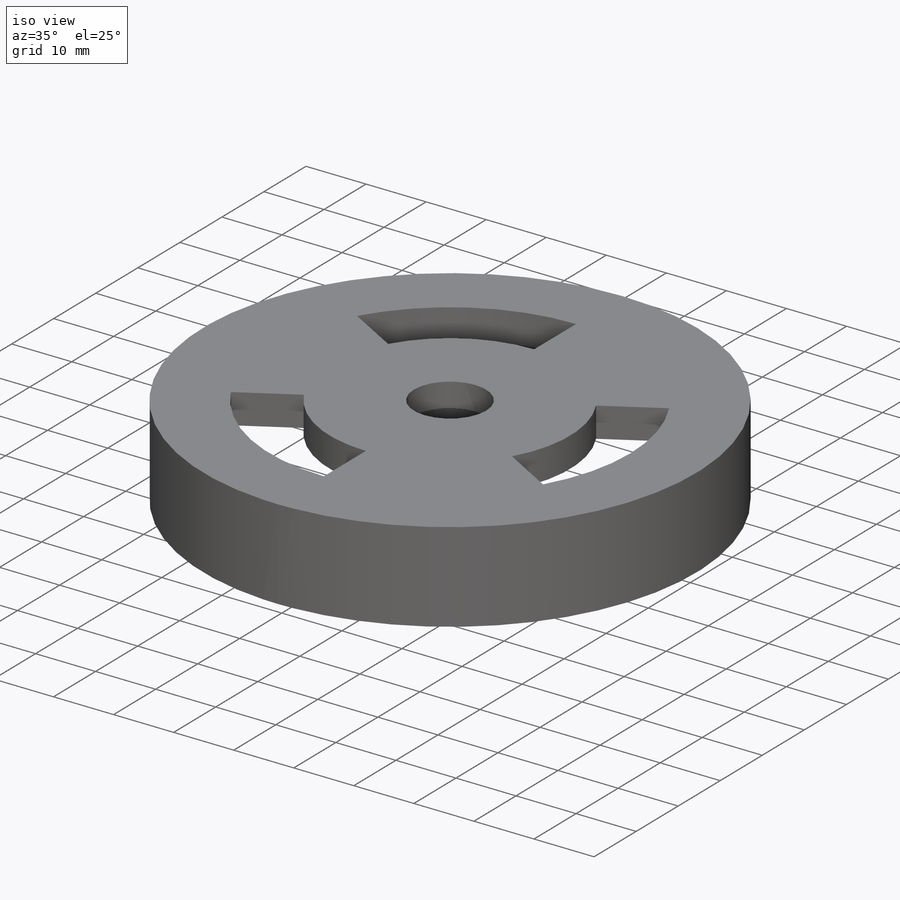
[diagram: iso view]
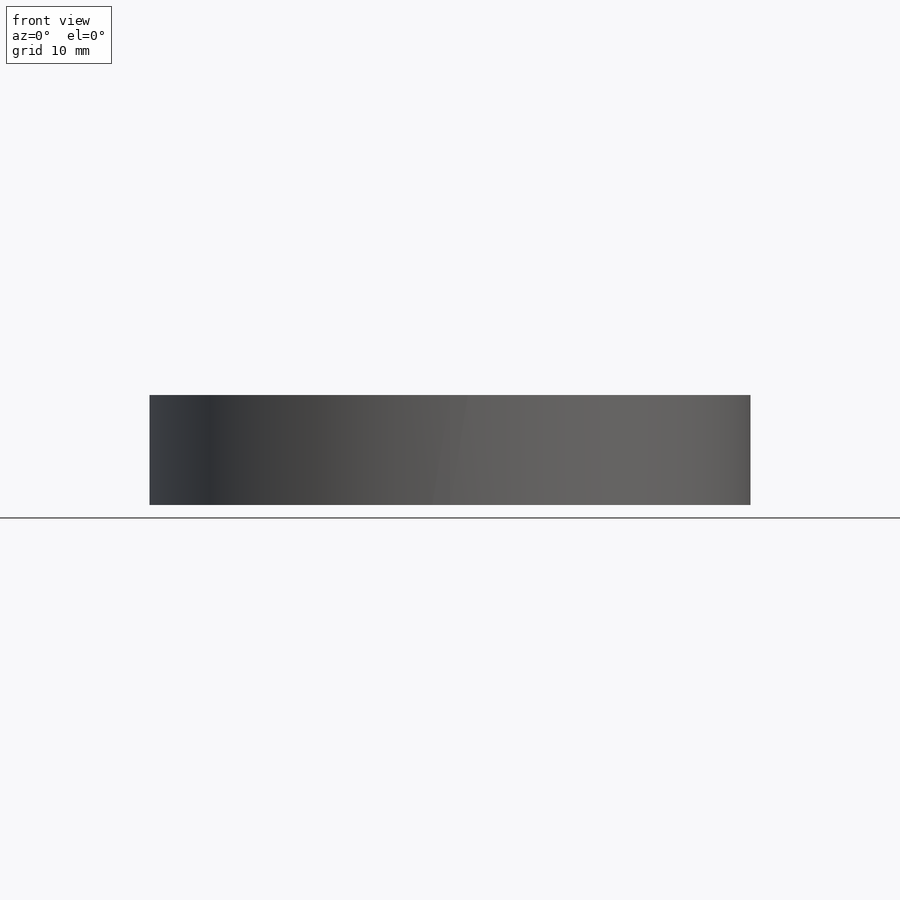
[diagram: front view]
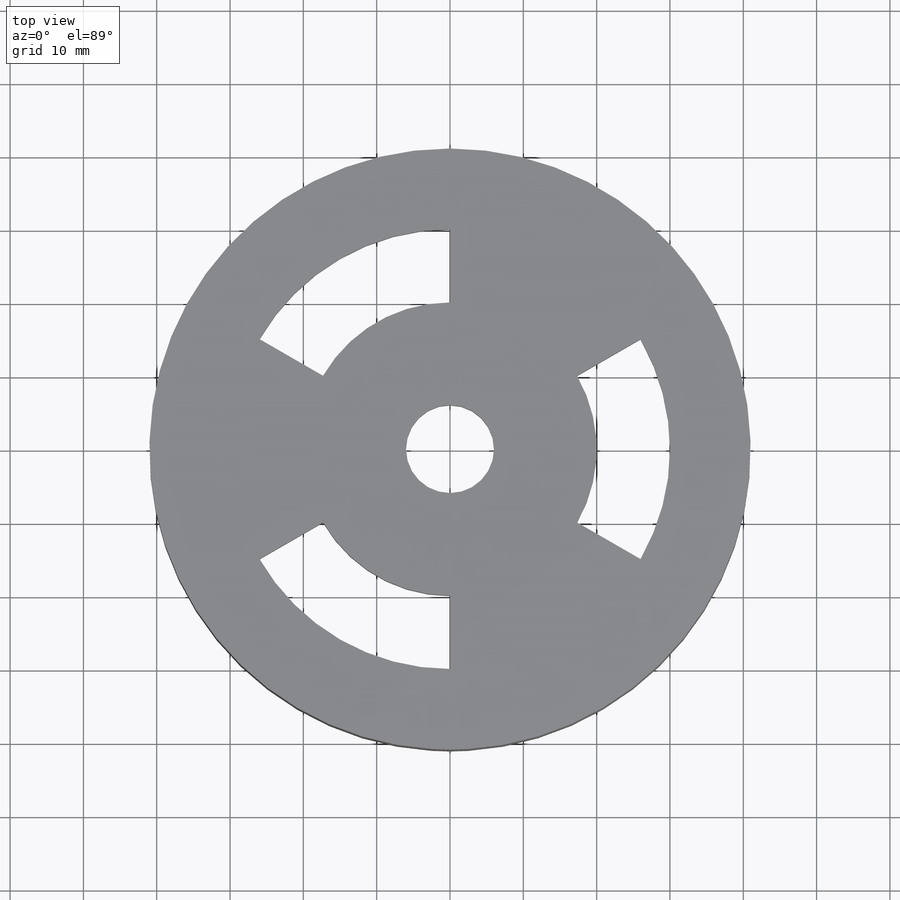
[diagram: top view]
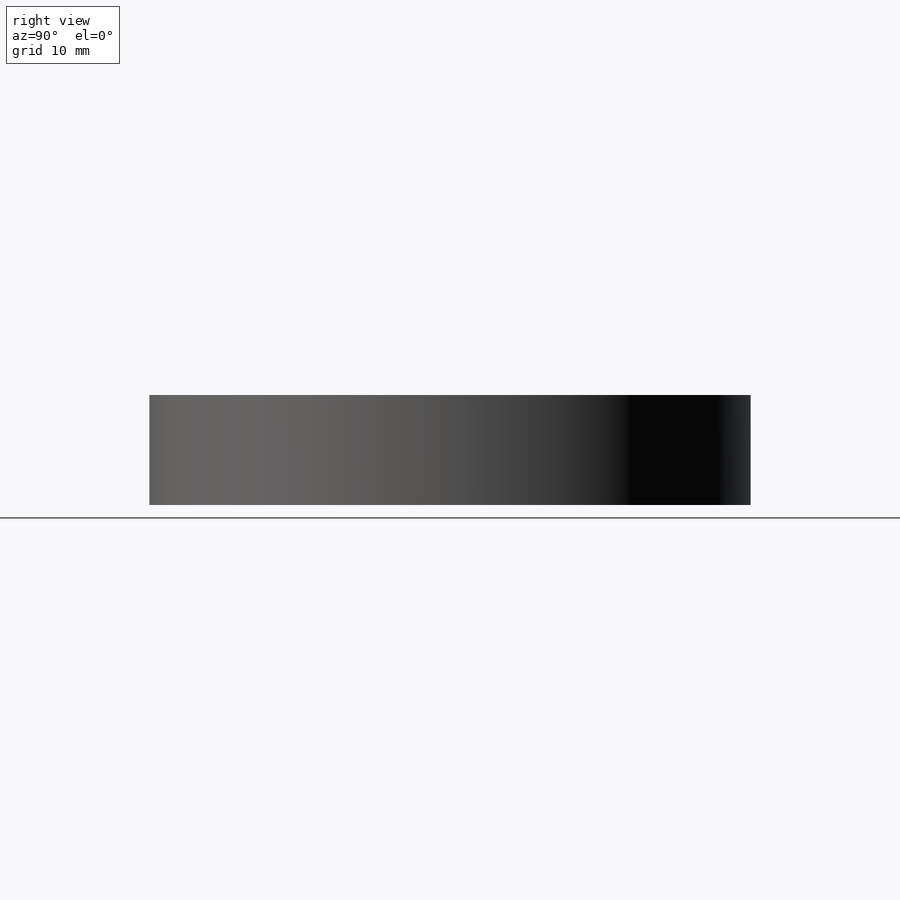
[diagram: right view]
SOLIDWORKS PART (.sldprt)
format: sldprt  version: not decoded by parser v0  size: 225,280 bytes
history: native  units: mm
features: sketch x6, plane x3, extrude x3, cut_extrude x3, material x1 (+9 scaffold rows collapsed)
feature tree (25):
  scaffold x9  (default folders/planes/origin — collapsed)
  material  "Material <not specified>"
  plane  "前视基准面"
  plane  "上视基准面"
  plane  "右视基准面"
  sketch  "Sketch1"  dims[D1=76.0mm D2=3.0mm]
  extrude  "Boss-Extrude1"  Depth=10mm
  sketch  "Sketch3"
  extrude  "Boss-Extrude2"  Depth=5mm
  sketch  "Sketch4"  dims[D1=25.0mm]
  extrude  "Boss-Extrude3"  Depth=5mm
  sketch  "Sketch5"  dims[D1=20.0mm]
  cut_extrude  "Cut-Extrude1"  Depth=6mm
  sketch  "Sketch6"  dims[D1=12.0mm]
  cut_extrude  "Cut-Extrude2"  [1 undecoded]
  sketch  "Sketch7"  dims[c1.D1=~29.648555mm c1.D2=20.0mm c2.D1=10.0mm c2.D3=~24.019864mm c3.D3=60.0deg c3.D4=3.0]
  cut_extrude  "Cut-Extrude3"  [1 undecoded]
decode coverage: 9 of 12 modeling features carry decoded parameters
note: ~ marks probable driven/reference dimensions
note: 2 parameter values undecoded
note: suppression state not decoded; provenance and decode notes live in map.json
